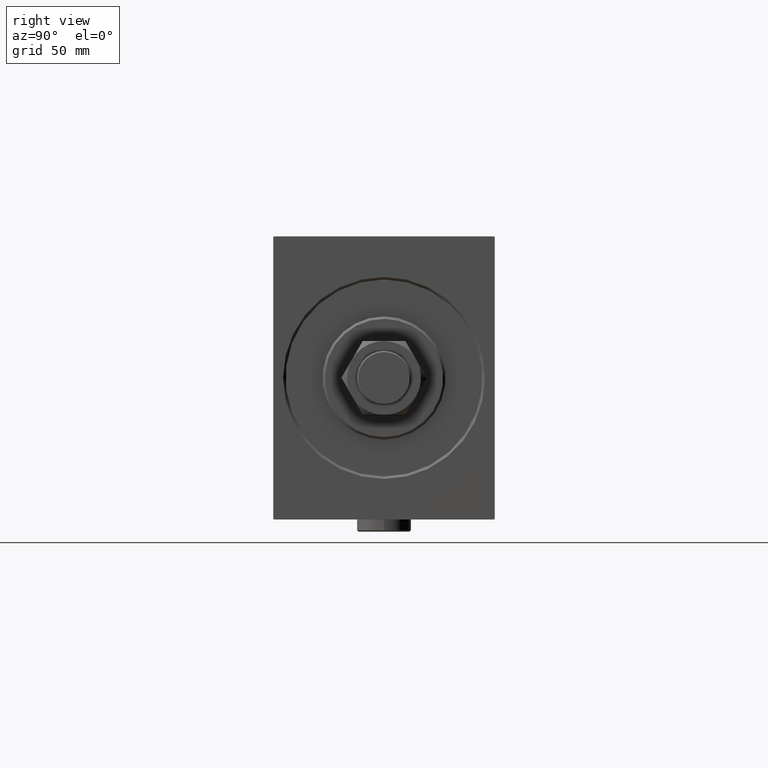
[diagram: clean part render]
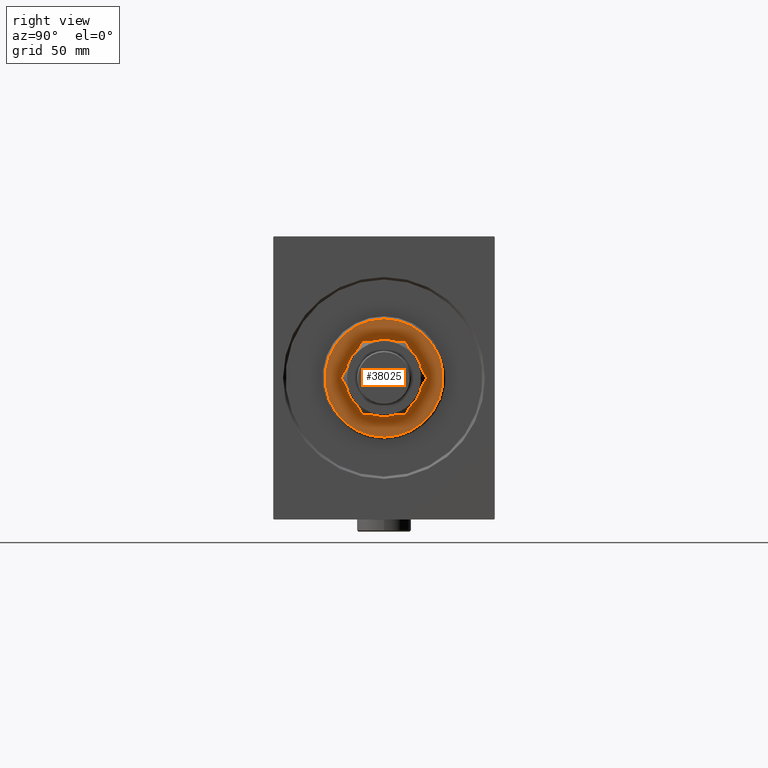
[diagram: same view with one face highlighted and labeled with its STEP entity id]
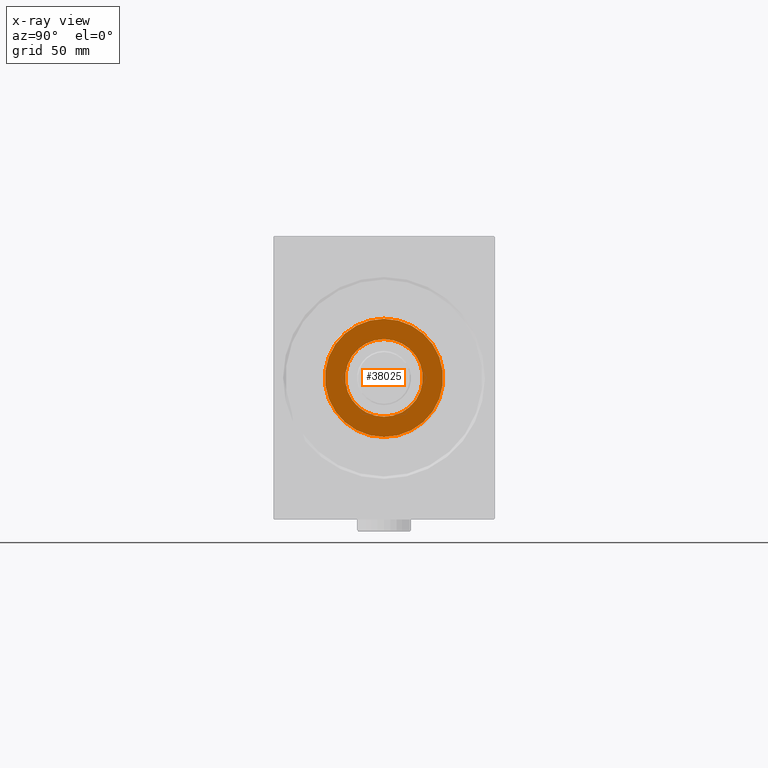
[diagram: x-ray of the same camera — body ghosted, the highlighted face saturated]
A machine part, right view. The second image highlights one B-rep face of the part: STEP entity #38025.
The next image is the same camera in x-ray: the body ghosted, the highlighted face saturated — about 0% of this face is hidden behind the body in this view.
In plain terms, the highlighted planar face has unit normal (1, 0, 0).
Its self-contained STEP definition (entity closure, byte-faithful):
#236 = CIRCLE ( 'NONE', #38147, 23.99999999999997868 ) ;
#2482 = EDGE_CURVE ( 'NONE', #31080, #34229, #13620, .T. ) ;
#3214 = AXIS2_PLACEMENT_3D ( 'NONE', #22290, #40433, #11335 ) ;
#4161 = FACE_OUTER_BOUND ( 'NONE', #16938, .T. ) ;
#4725 = VERTEX_POINT ( 'NONE', #12721 ) ;
#5691 = CARTESIAN_POINT ( 'NONE',  ( 3.000000000000000000, 0.000000000000000000, 15.75000000000000000 ) ) ;
#11116 = CIRCLE ( 'NONE', #27515, 15.75000000000000000 ) ;
#11145 = DIRECTION ( 'NONE',  ( 0.000000000000000000, 0.000000000000000000, -1.000000000000000000 ) ) ;
#11335 = DIRECTION ( 'NONE',  ( 0.000000000000000000, 0.000000000000000000, -1.000000000000000000 ) ) ;
#12597 = EDGE_LOOP ( 'NONE', ( #32736, #16883 ) ) ;
#12721 = CARTESIAN_POINT ( 'NONE',  ( 3.000000000000000000, 1.928818708657080950E-15, -15.75000000000000000 ) ) ;
#13620 = CIRCLE ( 'NONE', #3214, 23.99999999999997868 ) ;
#13653 = CARTESIAN_POINT ( 'NONE',  ( 3.000000000000000000, 0.000000000000000000, 0.000000000000000000 ) ) ;
#16169 = AXIS2_PLACEMENT_3D ( 'NONE', #13653, #16460, #42294 ) ;
#16460 = DIRECTION ( 'NONE',  ( -1.000000000000000000, 0.000000000000000000, -0.000000000000000000 ) ) ;
#16883 = ORIENTED_EDGE ( 'NONE', *, *, #43293, .T. ) ;
#16938 = EDGE_LOOP ( 'NONE', ( #18010, #23408 ) ) ;
#17091 = DIRECTION ( 'NONE',  ( 1.000000000000000000, -0.000000000000000000, 0.000000000000000000 ) ) ;
#18010 = ORIENTED_EDGE ( 'NONE', *, *, #2482, .T. ) ;
#20429 = CARTESIAN_POINT ( 'NONE',  ( 3.000000000000000000, 0.000000000000000000, 0.000000000000000000 ) ) ;
#20933 = CARTESIAN_POINT ( 'NONE',  ( 3.000000000000000000, 0.000000000000000000, 0.000000000000000000 ) ) ;
#22290 = CARTESIAN_POINT ( 'NONE',  ( 3.000000000000000000, 0.000000000000000000, 0.000000000000000000 ) ) ;
#23408 = ORIENTED_EDGE ( 'NONE', *, *, #29295, .T. ) ;
#23412 = EDGE_CURVE ( 'NONE', #36342, #4725, #11116, .T. ) ;
#27515 = AXIS2_PLACEMENT_3D ( 'NONE', #20429, #27897, #34643 ) ;
#27792 = DIRECTION ( 'NONE',  ( 0.000000000000000000, 0.000000000000000000, -1.000000000000000000 ) ) ;
#27897 = DIRECTION ( 'NONE',  ( -1.000000000000000000, 0.000000000000000000, -0.000000000000000000 ) ) ;
#28711 = CARTESIAN_POINT ( 'NONE',  ( 3.000000000000000000, 0.000000000000000000, 0.000000000000000000 ) ) ;
#29295 = EDGE_CURVE ( 'NONE', #34229, #31080, #236, .T. ) ;
#31080 = VERTEX_POINT ( 'NONE', #37255 ) ;
#32736 = ORIENTED_EDGE ( 'NONE', *, *, #23412, .T. ) ;
#34229 = VERTEX_POINT ( 'NONE', #43308 ) ;
#34643 = DIRECTION ( 'NONE',  ( 0.000000000000000000, 0.000000000000000000, -1.000000000000000000 ) ) ;
#36342 = VERTEX_POINT ( 'NONE', #5691 ) ;
#37255 = CARTESIAN_POINT ( 'NONE',  ( 3.000000000000000000, 0.000000000000000000, 23.99999999999997868 ) ) ;
#38025 = ADVANCED_FACE ( 'NONE', ( #4161, #42368 ), #39543, .T. ) ;
#38147 = AXIS2_PLACEMENT_3D ( 'NONE', #28711, #17091, #27792 ) ;
#39543 = PLANE ( 'NONE',  #43614 ) ;
#40433 = DIRECTION ( 'NONE',  ( 1.000000000000000000, -0.000000000000000000, 0.000000000000000000 ) ) ;
#42294 = DIRECTION ( 'NONE',  ( 0.000000000000000000, 0.000000000000000000, -1.000000000000000000 ) ) ;
#42368 = FACE_BOUND ( 'NONE', #12597, .T. ) ;
#42819 = DIRECTION ( 'NONE',  ( 1.000000000000000000, -0.000000000000000000, 0.000000000000000000 ) ) ;
#43293 = EDGE_CURVE ( 'NONE', #4725, #36342, #44399, .T. ) ;
#43308 = CARTESIAN_POINT ( 'NONE',  ( 3.000000000000000000, 3.000384657911014285E-15, -23.99999999999997868 ) ) ;
#43614 = AXIS2_PLACEMENT_3D ( 'NONE', #20933, #42819, #11145 ) ;
#44399 = CIRCLE ( 'NONE', #16169, 15.75000000000000000 ) ;